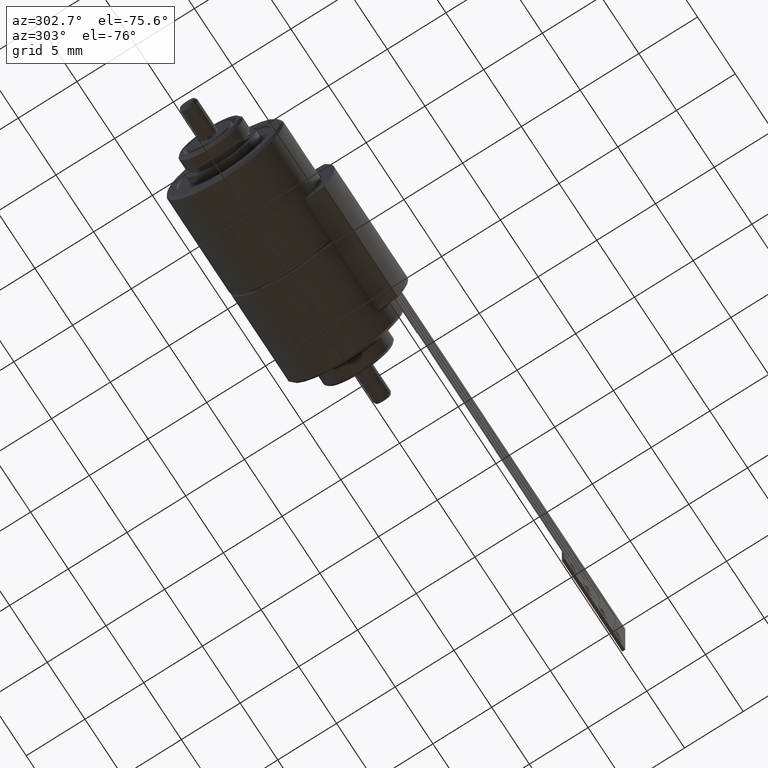
[diagram: clean part render]
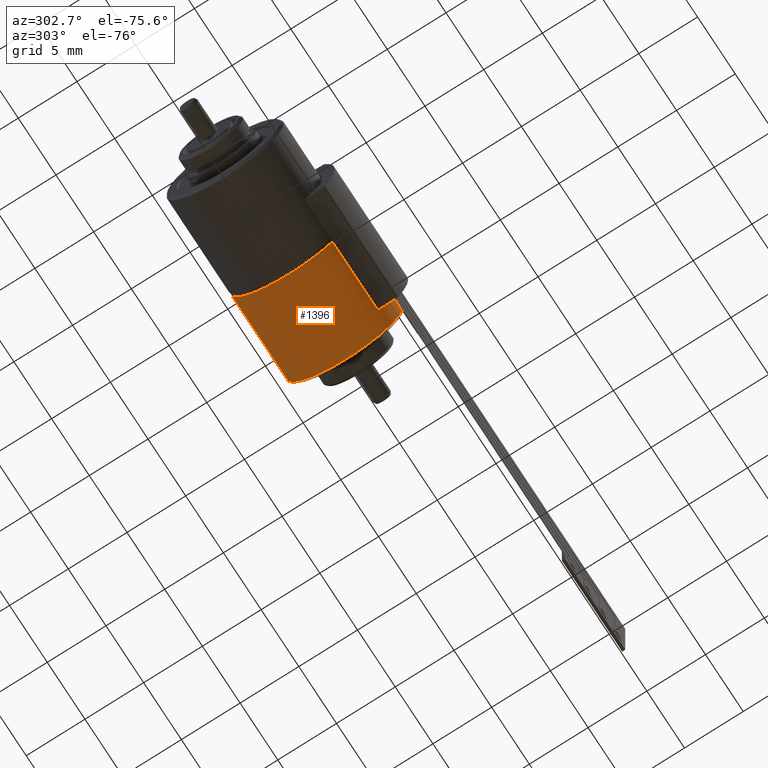
[diagram: same view with one face highlighted and labeled with its STEP entity id]
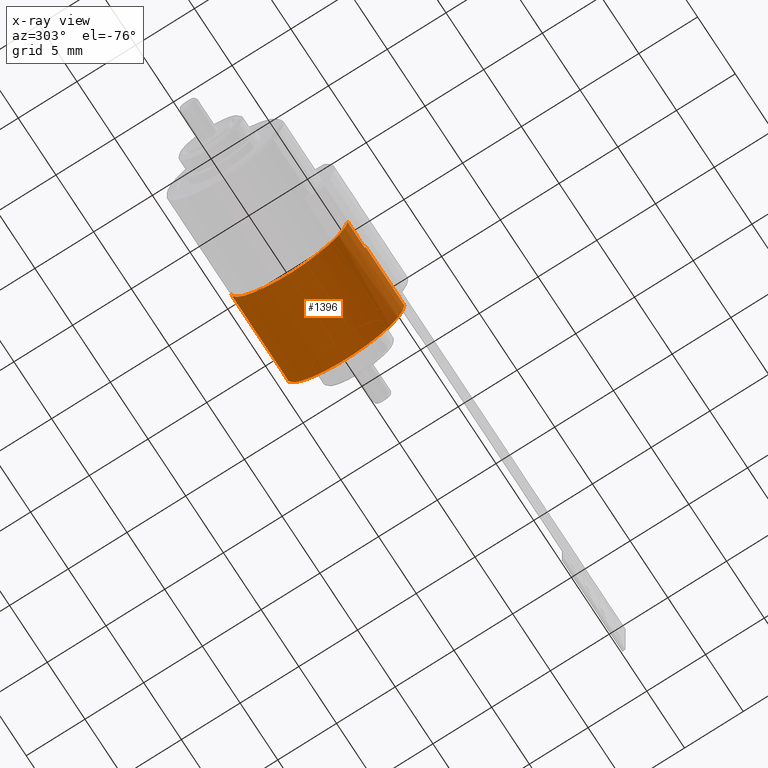
[diagram: x-ray of the same camera — body ghosted, the highlighted face saturated]
A machine part, auxiliary view. The second image highlights one B-rep face of the part: STEP entity #1396.
The next image is the same camera in x-ray: the body ghosted, the highlighted face saturated — about 0% of this face is hidden behind the body in this view.
In plain terms, the highlighted cylindrical surface (partial cylindrical patch) has radius 5 mm, axis along (-1, 0, 0).
Its self-contained STEP definition (entity closure, byte-faithful):
#1141=CARTESIAN_POINT('',(8.5E0,0.E0,0.E0));
#1142=DIRECTION('',(-1.E0,0.E0,0.E0));
#1143=DIRECTION('',(0.E0,1.E0,0.E0));
#1144=AXIS2_PLACEMENT_3D('',#1141,#1142,#1143);
#1155=DIRECTION('',(-1.E0,1.274021343203E-8,3.032849612398E-7));
#1156=VECTOR('',#1155,5.193596117465E0);
#1157=CARTESIAN_POINT('',(8.5E0,-5.E0,0.E0));
#1158=LINE('',#1157,#1156);
#1163=DIRECTION('',(-1.E0,0.E0,0.E0));
#1164=VECTOR('',#1163,7.5E0);
#1165=CARTESIAN_POINT('',(8.5E0,5.E0,0.E0));
#1166=LINE('',#1165,#1164);
#1167=DIRECTION('',(1.E0,1.409013195048E-9,0.E0));
#1168=VECTOR('',#1167,2.301244322150E0);
#1169=CARTESIAN_POINT('',(1.E0,-4.974937185566E0,-4.999999999967E-1));
#1170=LINE('',#1169,#1168);
#1190=CARTESIAN_POINT('',(1.E0,0.E0,0.E0));
#1191=DIRECTION('',(1.E0,0.E0,0.E0));
#1192=DIRECTION('',(0.E0,-9.949874371066E-1,-1.E-1));
#1193=AXIS2_PLACEMENT_3D('',#1190,#1191,#1192);
#1222=CARTESIAN_POINT('',(3.306403882536E0,-4.999999933832E0,
1.575139596568E-6));
#1223=CARTESIAN_POINT('',(3.306403882536E0,-4.999999933832E0,
-5.567527189796E-2));
#1224=CARTESIAN_POINT('',(3.306026336718E0,-4.998143312500E0,
-1.669452591373E-1));
#1225=CARTESIAN_POINT('',(3.304313723690E0,-4.989780220201E0,
-3.337358202404E-1));
#1226=CARTESIAN_POINT('',(3.302400300583E0,-4.980503317962E0,
-4.446176496672E-1));
#1227=CARTESIAN_POINT('',(3.301244322150E0,-4.974937182324E0,
-4.999999999967E-1));
#1283=CARTESIAN_POINT('',(8.5E0,5.E0,0.E0));
#1284=VERTEX_POINT('',#1283);
#1285=CARTESIAN_POINT('',(8.5E0,-5.E0,0.E0));
#1286=VERTEX_POINT('',#1285);
#1287=CARTESIAN_POINT('',(3.306403882536E0,-4.999999933832E0,
1.575139596568E-6));
#1288=VERTEX_POINT('',#1287);
#1292=CARTESIAN_POINT('',(1.E0,5.E0,0.E0));
#1293=VERTEX_POINT('',#1292);
#1294=CARTESIAN_POINT('',(1.E0,-4.974937185533E0,-5.E-1));
#1295=VERTEX_POINT('',#1294);
#1296=CARTESIAN_POINT('',(3.301244322150E0,-4.974937182324E0,
-4.999999999967E-1));
#1297=VERTEX_POINT('',#1296);
#1380=CARTESIAN_POINT('',(2.424654622742E0,0.E0,0.E0));
#1381=DIRECTION('',(-1.E0,0.E0,0.E0));
#1382=DIRECTION('',(0.E0,-1.E0,0.E0));
#1383=AXIS2_PLACEMENT_3D('',#1380,#1381,#1382);
#1384=CYLINDRICAL_SURFACE('',#1383,5.E0);
#1385=ORIENTED_EDGE('',*,*,#1375,.T.);
#1387=ORIENTED_EDGE('',*,*,#1386,.F.);
#1389=ORIENTED_EDGE('',*,*,#1388,.T.);
#1391=ORIENTED_EDGE('',*,*,#1390,.F.);
#1392=ORIENTED_EDGE('',*,*,#1367,.F.);
#1393=ORIENTED_EDGE('',*,*,#1340,.F.);
#1394=EDGE_LOOP('',(#1385,#1387,#1389,#1391,#1392,#1393));
#1395=FACE_OUTER_BOUND('',#1394,.F.);
#1396=ADVANCED_FACE('',(#1395),#1384,.T.);
#1145=CIRCLE('',#1144,5.E0);
#1194=CIRCLE('',#1193,5.E0);
#1228=B_SPLINE_CURVE_WITH_KNOTS('',3,(#1222,#1223,#1224,#1225,#1226,#1227),
.UNSPECIFIED.,.F.,.F.,(4,1,1,4),(0.E0,3.333333333333E-1,6.666666666667E-1,1.E0),
.UNSPECIFIED.);
#1340=EDGE_CURVE('',#1284,#1286,#1145,.T.);
#1367=EDGE_CURVE('',#1286,#1288,#1158,.T.);
#1375=EDGE_CURVE('',#1284,#1293,#1166,.T.);
#1386=EDGE_CURVE('',#1295,#1293,#1194,.T.);
#1388=EDGE_CURVE('',#1295,#1297,#1170,.T.);
#1390=EDGE_CURVE('',#1288,#1297,#1228,.T.);